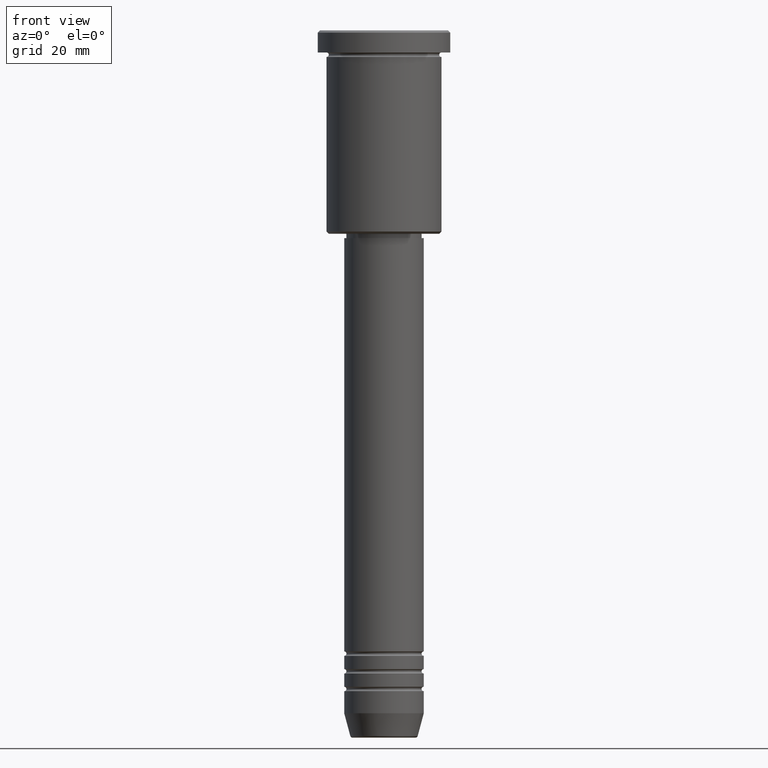
[diagram: clean part render]
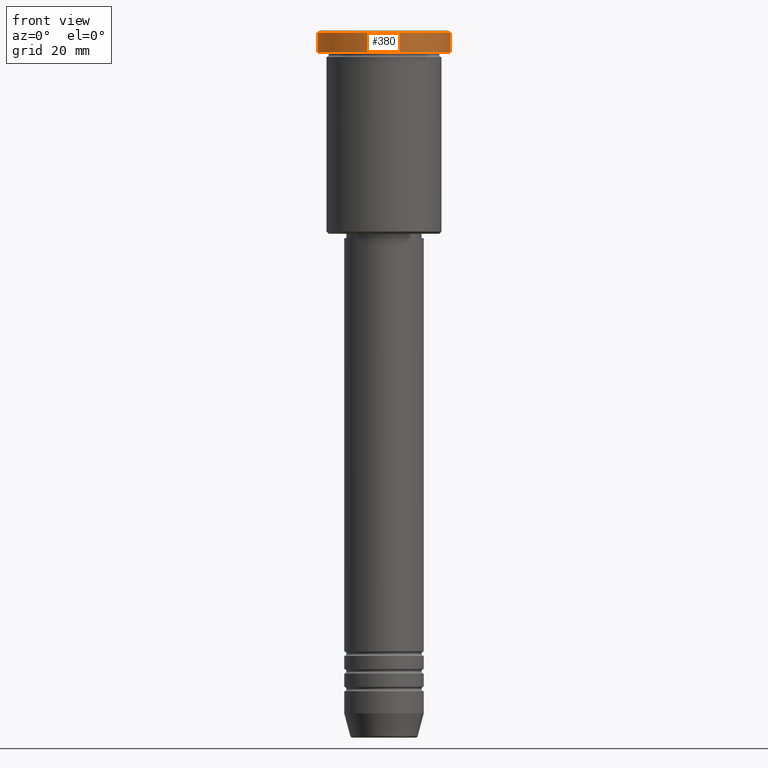
[diagram: same view with one face highlighted and labeled with its STEP entity id]
A machine part, front view. The second image highlights one B-rep face of the part: STEP entity #380.
In plain terms, the highlighted cylindrical surface (partial cylindrical patch) has radius 15 mm, axis along (-0, -0, 1).
Its self-contained STEP definition (entity closure, byte-faithful):
#14 = CIRCLE ( 'NONE', #173, 15.00000000000000000 ) ;
#15 = DIRECTION ( 'NONE',  ( -0.000000000000000000, -0.000000000000000000, 1.000000000000000000 ) ) ;
#33 = DIRECTION ( 'NONE',  ( 0.000000000000000000, 0.000000000000000000, -1.000000000000000000 ) ) ;
#36 = EDGE_LOOP ( 'NONE', ( #854, #301, #1183, #255 ) ) ;
#65 = DIRECTION ( 'NONE',  ( -0.000000000000000000, -0.000000000000000000, 1.000000000000000000 ) ) ;
#111 = EDGE_CURVE ( 'NONE', #1168, #318, #475, .T. ) ;
#117 = AXIS2_PLACEMENT_3D ( 'NONE', #357, #342, #435 ) ;
#173 = AXIS2_PLACEMENT_3D ( 'NONE', #862, #33, #784 ) ;
#243 = CARTESIAN_POINT ( 'NONE',  ( 15.00000000000000000, 0.000000000000000000, -0.5000000000000108802 ) ) ;
#255 = ORIENTED_EDGE ( 'NONE', *, *, #264, .T. ) ;
#264 = EDGE_CURVE ( 'NONE', #318, #897, #14, .T. ) ;
#265 = CYLINDRICAL_SURFACE ( 'NONE', #117, 15.00000000000000000 ) ;
#301 = ORIENTED_EDGE ( 'NONE', *, *, #981, .T. ) ;
#318 = VERTEX_POINT ( 'NONE', #243 ) ;
#342 = DIRECTION ( 'NONE',  ( -0.000000000000000000, -0.000000000000000000, 1.000000000000000000 ) ) ;
#357 = CARTESIAN_POINT ( 'NONE',  ( 0.000000000000000000, 0.000000000000000000, 0.000000000000000000 ) ) ;
#369 = CARTESIAN_POINT ( 'NONE',  ( 15.00000000000000000, 0.000000000000000000, 0.000000000000000000 ) ) ;
#380 = ADVANCED_FACE ( 'NONE', ( #445 ), #265, .T. ) ;
#420 = VECTOR ( 'NONE', #65, 1000.000000000000000 ) ;
#435 = DIRECTION ( 'NONE',  ( 1.000000000000000000, 0.000000000000000000, 0.000000000000000000 ) ) ;
#445 = FACE_OUTER_BOUND ( 'NONE', #36, .T. ) ;
#451 = EDGE_CURVE ( 'NONE', #495, #897, #811, .T. ) ;
#475 = LINE ( 'NONE', #369, #810 ) ;
#495 = VERTEX_POINT ( 'NONE', #646 ) ;
#604 = CARTESIAN_POINT ( 'NONE',  ( 15.00000000000000000, 0.000000000000000000, -4.999999999999999112 ) ) ;
#645 = DIRECTION ( 'NONE',  ( 1.000000000000000000, 0.000000000000000000, 0.000000000000000000 ) ) ;
#646 = CARTESIAN_POINT ( 'NONE',  ( -15.00000000000000000, 1.836970198721029589E-15, -4.999999999999999112 ) ) ;
#661 = CIRCLE ( 'NONE', #852, 15.00000000000000000 ) ;
#784 = DIRECTION ( 'NONE',  ( 1.000000000000000000, 0.000000000000000000, 0.000000000000000000 ) ) ;
#810 = VECTOR ( 'NONE', #15, 1000.000000000000000 ) ;
#811 = LINE ( 'NONE', #1077, #420 ) ;
#852 = AXIS2_PLACEMENT_3D ( 'NONE', #1085, #913, #645 ) ;
#854 = ORIENTED_EDGE ( 'NONE', *, *, #451, .F. ) ;
#862 = CARTESIAN_POINT ( 'NONE',  ( 0.000000000000000000, 0.000000000000000000, -0.5000000000000108802 ) ) ;
#897 = VERTEX_POINT ( 'NONE', #1053 ) ;
#913 = DIRECTION ( 'NONE',  ( -0.000000000000000000, -0.000000000000000000, 1.000000000000000000 ) ) ;
#981 = EDGE_CURVE ( 'NONE', #495, #1168, #661, .T. ) ;
#1053 = CARTESIAN_POINT ( 'NONE',  ( -15.00000000000000000, 1.836970198721029589E-15, -0.5000000000000108802 ) ) ;
#1077 = CARTESIAN_POINT ( 'NONE',  ( -15.00000000000000000, 1.836970198721029589E-15, 0.000000000000000000 ) ) ;
#1085 = CARTESIAN_POINT ( 'NONE',  ( 0.000000000000000000, 0.000000000000000000, -4.999999999999999112 ) ) ;
#1168 = VERTEX_POINT ( 'NONE', #604 ) ;
#1183 = ORIENTED_EDGE ( 'NONE', *, *, #111, .T. ) ;